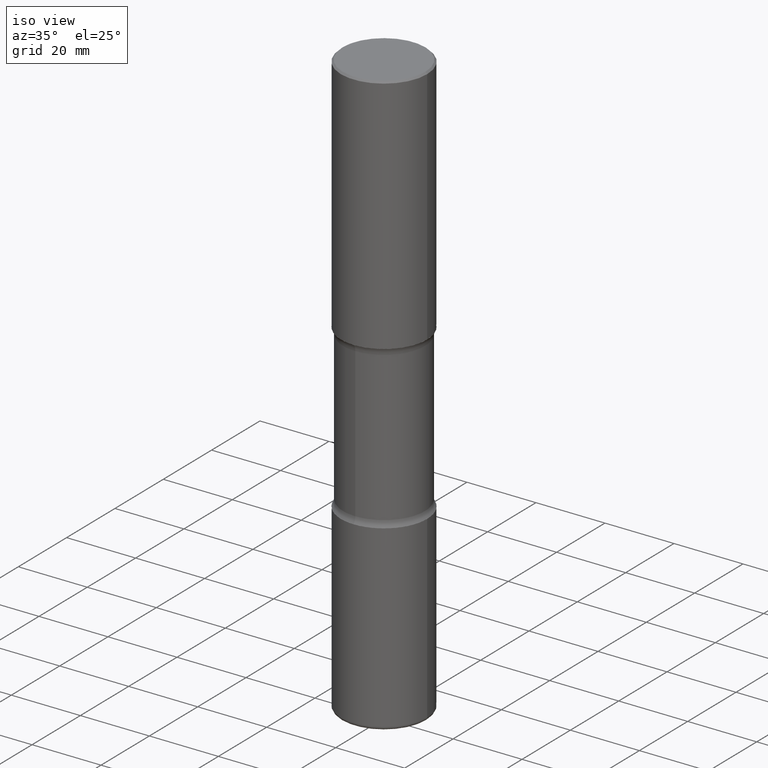
[diagram: clean part render]
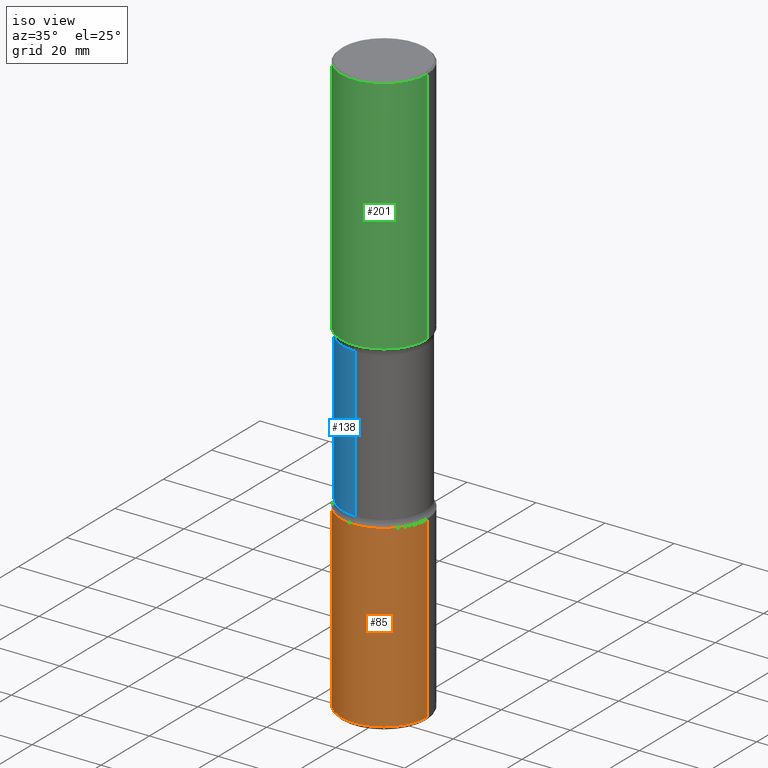
[diagram: same view with three faces highlighted in distinct colors, each labeled with its STEP entity id]
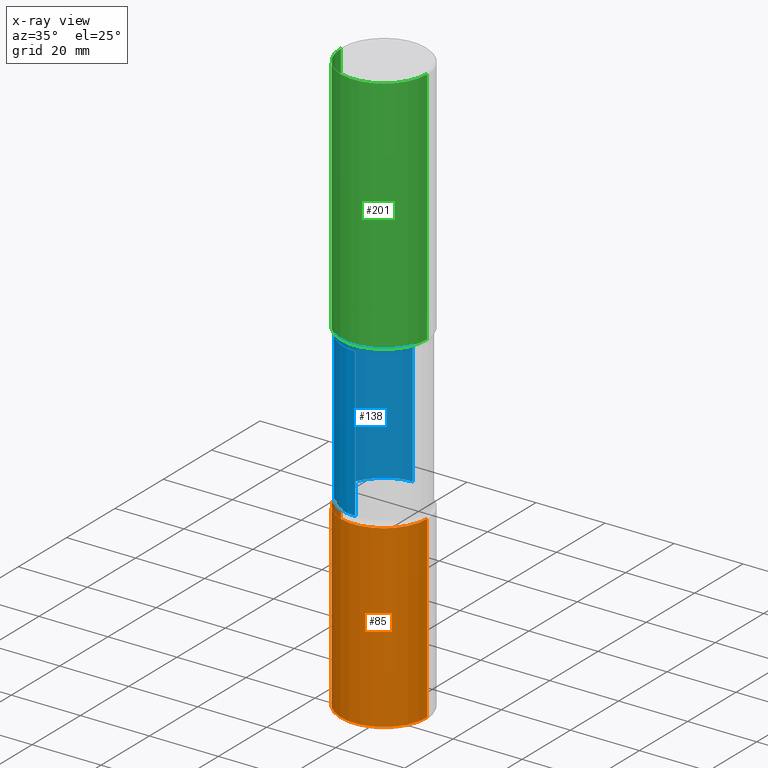
[diagram: x-ray of the same camera — body ghosted, the three highlighted faces saturated]
A machine part, iso view with three faces highlighted in distinct colors.
The next image is the same camera in x-ray (body ghosted, the three faces saturated) — at least one of them is partly hidden behind the body in this view.
Their STEP definitions:

[orange] entity #85 — the highlighted cylindrical surface (partial cylindrical patch) has radius 12.5006 mm, axis along (-0, 0, 1).
#20 = VERTEX_POINT ( 'NONE', #547 ) ;
#33 = CARTESIAN_POINT ( 'NONE',  ( 0.000000000000000000, 0.000000000000000000, 0.000000000000000000 ) ) ;
#54 = DIRECTION ( 'NONE',  ( -2.445468806185136597E-29, 3.491481338843145583E-15, 1.000000000000000000 ) ) ;
#68 = DIRECTION ( 'NONE',  ( -2.445468806185136877E-29, 3.491481338843145188E-15, 1.000000000000000000 ) ) ;
#85 = ADVANCED_FACE ( 'NONE', ( #215 ), #552, .T. ) ;
#98 = DIRECTION ( 'NONE',  ( 1.000000000000000000, -6.982962677686270655E-15, 0.000000000000000000 ) ) ;
#99 = AXIS2_PLACEMENT_3D ( 'NONE', #202, #479, #185 ) ;
#107 = CIRCLE ( 'NONE', #381, 0.4921500000000002539 ) ;
#120 = VERTEX_POINT ( 'NONE', #326 ) ;
#139 = VECTOR ( 'NONE', #68, 39.37007874015748143 ) ;
#142 = CARTESIAN_POINT ( 'NONE',  ( 0.4921500000000002539, -1.951947557293647774E-14, -4.606299999999999173 ) ) ;
#152 = EDGE_CURVE ( 'NONE', #120, #164, #406, .T. ) ;
#164 = VERTEX_POINT ( 'NONE', #222 ) ;
#174 = EDGE_CURVE ( 'NONE', #20, #200, #107, .T. ) ;
#185 = DIRECTION ( 'NONE',  ( 1.000000000000000000, -6.982962677686262766E-15, 0.000000000000000000 ) ) ;
#187 = DIRECTION ( 'NONE',  ( -2.445468806185136877E-29, 3.491481338843145188E-15, 1.000000000000000000 ) ) ;
#200 = VERTEX_POINT ( 'NONE', #142 ) ;
#202 = CARTESIAN_POINT ( 'NONE',  ( 1.627092670195280394E-28, -2.323057108799286859E-14, -6.653499999999999304 ) ) ;
#208 = CARTESIAN_POINT ( 'NONE',  ( 0.4921500000000002539, -3.436665081823297749E-15, 2.399810400207971004E-29 ) ) ;
#215 = FACE_OUTER_BOUND ( 'NONE', #497, .T. ) ;
#222 = CARTESIAN_POINT ( 'NONE',  ( 0.4921500000000003650, -2.666723616981616910E-14, -6.653499999999999304 ) ) ;
#223 = VECTOR ( 'NONE', #187, 39.37007874015748143 ) ;
#235 = EDGE_CURVE ( 'NONE', #120, #20, #433, .T. ) ;
#252 = LINE ( 'NONE', #208, #139 ) ;
#326 = CARTESIAN_POINT ( 'NONE',  ( -0.4921500000000003650, -1.973363501394953490E-14, -6.653499999999999304 ) ) ;
#331 = DIRECTION ( 'NONE',  ( -2.445468806185136597E-29, 3.491481338843145583E-15, 1.000000000000000000 ) ) ;
#342 = ORIENTED_EDGE ( 'NONE', *, *, #152, .T. ) ;
#345 = CARTESIAN_POINT ( 'NONE',  ( 1.126456296193059450E-28, -1.608281049111318039E-14, -4.606299999999999173 ) ) ;
#365 = ORIENTED_EDGE ( 'NONE', *, *, #487, .T. ) ;
#373 = ORIENTED_EDGE ( 'NONE', *, *, #174, .F. ) ;
#381 = AXIS2_PLACEMENT_3D ( 'NONE', #345, #54, #98 ) ;
#403 = ORIENTED_EDGE ( 'NONE', *, *, #235, .F. ) ;
#406 = CIRCLE ( 'NONE', #99, 0.4921500000000001984 ) ;
#429 = AXIS2_PLACEMENT_3D ( 'NONE', #33, #331, #461 ) ;
#433 = LINE ( 'NONE', #468, #223 ) ;
#461 = DIRECTION ( 'NONE',  ( 1.000000000000000000, -6.982962677686266711E-15, 4.876176775795935793E-29 ) ) ;
#468 = CARTESIAN_POINT ( 'NONE',  ( -0.4921500000000002539, 3.496936074043334869E-15, -2.420853904668952910E-29 ) ) ;
#479 = DIRECTION ( 'NONE',  ( -2.445468806185136597E-29, 3.491481338843145583E-15, 1.000000000000000000 ) ) ;
#487 = EDGE_CURVE ( 'NONE', #164, #200, #252, .T. ) ;
#497 = EDGE_LOOP ( 'NONE', ( #403, #342, #365, #373 ) ) ;
#547 = CARTESIAN_POINT ( 'NONE',  ( -0.4921500000000002539, -1.615975471550968765E-14, -4.606299999999999173 ) ) ;
#552 = CYLINDRICAL_SURFACE ( 'NONE', #429, 0.4921500000000002539 ) ;

[blue] entity #138 — the highlighted cylindrical surface (partial cylindrical patch) has radius 11.8745 mm, axis along (0, -0, -1).
#4 = CARTESIAN_POINT ( 'NONE',  ( -3.291838451780614217E-15, -0.4675000000000157918, -4.531768949423744530 ) ) ;
#28 = DIRECTION ( 'NONE',  ( 6.982962677686266711E-15, 1.000000000000000000, -3.506115072082477581E-15 ) ) ;
#40 = CARTESIAN_POINT ( 'NONE',  ( 1.107980415843712738E-28, -1.582616033701247086E-14, -4.531768949423746307 ) ) ;
#96 = CARTESIAN_POINT ( 'NONE',  ( 6.862271303354788236E-29, -9.967546637882530720E-15, -2.830431050576252883 ) ) ;
#124 = ORIENTED_EDGE ( 'NONE', *, *, #184, .T. ) ;
#132 = DIRECTION ( 'NONE',  ( 2.478950746902979070E-29, -3.443533294061476764E-15, -1.000000000000000000 ) ) ;
#134 = EDGE_CURVE ( 'NONE', #305, #359, #559, .T. ) ;
#136 = LINE ( 'NONE', #341, #529 ) ;
#138 = ADVANCED_FACE ( 'NONE', ( #456 ), #378, .T. ) ;
#165 = VECTOR ( 'NONE', #392, 39.37007874015748143 ) ;
#173 = DIRECTION ( 'NONE',  ( 2.478950746902978790E-29, -3.443533294061476764E-15, -1.000000000000000000 ) ) ;
#182 = EDGE_LOOP ( 'NONE', ( #495, #417, #124, #284 ) ) ;
#184 = EDGE_CURVE ( 'NONE', #192, #359, #225, .T. ) ;
#192 = VERTEX_POINT ( 'NONE', #515 ) ;
#220 = EDGE_CURVE ( 'NONE', #413, #192, #272, .T. ) ;
#225 = LINE ( 'NONE', #384, #165 ) ;
#228 = DIRECTION ( 'NONE',  ( 2.478950746902978790E-29, -3.443533294061476764E-15, -1.000000000000000000 ) ) ;
#232 = AXIS2_PLACEMENT_3D ( 'NONE', #40, #500, #28 ) ;
#241 = CARTESIAN_POINT ( 'NONE',  ( 3.264535051818439654E-15, 0.4674999999999840949, -4.531768949423748083 ) ) ;
#265 = AXIS2_PLACEMENT_3D ( 'NONE', #556, #173, #371 ) ;
#268 = EDGE_CURVE ( 'NONE', #413, #305, #136, .T. ) ;
#272 = CIRCLE ( 'NONE', #450, 0.4674999999999999156 ) ;
#284 = ORIENTED_EDGE ( 'NONE', *, *, #134, .F. ) ;
#305 = VERTEX_POINT ( 'NONE', #4 ) ;
#341 = CARTESIAN_POINT ( 'NONE',  ( -3.207282813958025392E-15, -0.4675000000000231748, -6.692899999999998073 ) ) ;
#359 = VERTEX_POINT ( 'NONE', #241 ) ;
#371 = DIRECTION ( 'NONE',  ( 6.982962677686265922E-15, 1.000000000000000000, -2.337410048054985186E-15 ) ) ;
#378 = CYLINDRICAL_SURFACE ( 'NONE', #265, 0.4674999999999998601 ) ;
#384 = CARTESIAN_POINT ( 'NONE',  ( 3.264535051818492903E-15, 0.4674999999999766009, -6.692899999999999849 ) ) ;
#392 = DIRECTION ( 'NONE',  ( 2.478950746902979070E-29, -3.443533294061476764E-15, -1.000000000000000000 ) ) ;
#413 = VERTEX_POINT ( 'NONE', #528 ) ;
#417 = ORIENTED_EDGE ( 'NONE', *, *, #220, .T. ) ;
#450 = AXIS2_PLACEMENT_3D ( 'NONE', #96, #228, #526 ) ;
#456 = FACE_OUTER_BOUND ( 'NONE', #182, .T. ) ;
#495 = ORIENTED_EDGE ( 'NONE', *, *, #268, .F. ) ;
#500 = DIRECTION ( 'NONE',  ( 2.478950746902978790E-29, -3.443533294061476764E-15, -1.000000000000000000 ) ) ;
#515 = CARTESIAN_POINT ( 'NONE',  ( 3.264535051818397450E-15, 0.4674999999999899791, -2.830431050576254215 ) ) ;
#526 = DIRECTION ( 'NONE',  ( 6.982962677686266711E-15, 1.000000000000000000, -3.506115072082477581E-15 ) ) ;
#528 = CARTESIAN_POINT ( 'NONE',  ( -3.291838451780658393E-15, -0.4675000000000099076, -2.830431050576251106 ) ) ;
#529 = VECTOR ( 'NONE', #132, 39.37007874015748143 ) ;
#556 = CARTESIAN_POINT ( 'NONE',  ( 1.643714159041834644E-28, -2.326808706250185533E-14, -6.692899999999998961 ) ) ;
#559 = CIRCLE ( 'NONE', #232, 0.4674999999999999156 ) ;

[green] entity #201 — the highlighted cylindrical surface (partial cylindrical patch) has radius 12.5006 mm, axis along (-0, 0, 1).
#14 = EDGE_CURVE ( 'NONE', #126, #204, #358, .T. ) ;
#17 = EDGE_CURVE ( 'NONE', #376, #290, #490, .T. ) ;
#21 = CARTESIAN_POINT ( 'NONE',  ( -0.4921499999999999209, 3.366835455046432084E-15, -0.02000000000000006981 ) ) ;
#50 = CARTESIAN_POINT ( 'NONE',  ( 0.4921500000000002539, -1.305883850354111701E-14, -2.755899999999998240 ) ) ;
#65 = CARTESIAN_POINT ( 'NONE',  ( 0.4921500000000000874, -3.436665081823296565E-15, 2.399810400207970163E-29 ) ) ;
#67 = EDGE_LOOP ( 'NONE', ( #502, #438, #441, #550 ) ) ;
#94 = CARTESIAN_POINT ( 'NONE',  ( -0.4921500000000000874, 3.496936074043333686E-15, -2.420853904668952350E-29 ) ) ;
#117 = AXIS2_PLACEMENT_3D ( 'NONE', #282, #299, #162 ) ;
#125 = CARTESIAN_POINT ( 'NONE',  ( 4.890937612370289799E-31, -6.982962677686315028E-17, -0.02000000000000006981 ) ) ;
#126 = VERTEX_POINT ( 'NONE', #158 ) ;
#127 = DIRECTION ( 'NONE',  ( -2.445468806185136877E-29, 3.491481338843145188E-15, 1.000000000000000000 ) ) ;
#158 = CARTESIAN_POINT ( 'NONE',  ( -0.4921500000000002539, -1.349065450204005425E-15, -2.755899999999998240 ) ) ;
#162 = DIRECTION ( 'NONE',  ( 1.000000000000000000, -6.982962677686266711E-15, 0.000000000000000000 ) ) ;
#172 = EDGE_CURVE ( 'NONE', #126, #376, #431, .T. ) ;
#176 = DIRECTION ( 'NONE',  ( -2.445468806185136597E-29, 3.491481338843145583E-15, 1.000000000000000000 ) ) ;
#201 = ADVANCED_FACE ( 'NONE', ( #311 ), #389, .T. ) ;
#204 = VERTEX_POINT ( 'NONE', #50 ) ;
#266 = VECTOR ( 'NONE', #127, 39.37007874015748143 ) ;
#267 = DIRECTION ( 'NONE',  ( 1.000000000000000000, -6.982962677686265922E-15, 4.876176775795935793E-29 ) ) ;
#282 = CARTESIAN_POINT ( 'NONE',  ( 6.739467482965614869E-29, -9.622173421717819657E-15, -2.755899999999998240 ) ) ;
#290 = VERTEX_POINT ( 'NONE', #304 ) ;
#299 = DIRECTION ( 'NONE',  ( -2.445468806185136597E-29, 3.491481338843145583E-15, 1.000000000000000000 ) ) ;
#302 = DIRECTION ( 'NONE',  ( -2.445468806185136877E-29, 3.491481338843145188E-15, 1.000000000000000000 ) ) ;
#304 = CARTESIAN_POINT ( 'NONE',  ( 0.4921499999999999209, -3.446223716380121955E-15, -0.02000000000000006981 ) ) ;
#311 = FACE_OUTER_BOUND ( 'NONE', #67, .T. ) ;
#321 = AXIS2_PLACEMENT_3D ( 'NONE', #125, #544, #412 ) ;
#329 = AXIS2_PLACEMENT_3D ( 'NONE', #478, #176, #267 ) ;
#358 = CIRCLE ( 'NONE', #117, 0.4921500000000002539 ) ;
#376 = VERTEX_POINT ( 'NONE', #21 ) ;
#377 = LINE ( 'NONE', #65, #266 ) ;
#389 = CYLINDRICAL_SURFACE ( 'NONE', #329, 0.4921500000000000874 ) ;
#397 = VECTOR ( 'NONE', #302, 39.37007874015748143 ) ;
#412 = DIRECTION ( 'NONE',  ( 1.000000000000000000, -6.982962677686265922E-15, 0.000000000000000000 ) ) ;
#431 = LINE ( 'NONE', #94, #397 ) ;
#438 = ORIENTED_EDGE ( 'NONE', *, *, #14, .T. ) ;
#441 = ORIENTED_EDGE ( 'NONE', *, *, #514, .T. ) ;
#478 = CARTESIAN_POINT ( 'NONE',  ( 0.000000000000000000, 0.000000000000000000, 0.000000000000000000 ) ) ;
#490 = CIRCLE ( 'NONE', #321, 0.4921499999999999209 ) ;
#502 = ORIENTED_EDGE ( 'NONE', *, *, #172, .F. ) ;
#514 = EDGE_CURVE ( 'NONE', #204, #290, #377, .T. ) ;
#544 = DIRECTION ( 'NONE',  ( -2.445468806185136597E-29, 3.491481338843145583E-15, 1.000000000000000000 ) ) ;
#550 = ORIENTED_EDGE ( 'NONE', *, *, #17, .F. ) ;